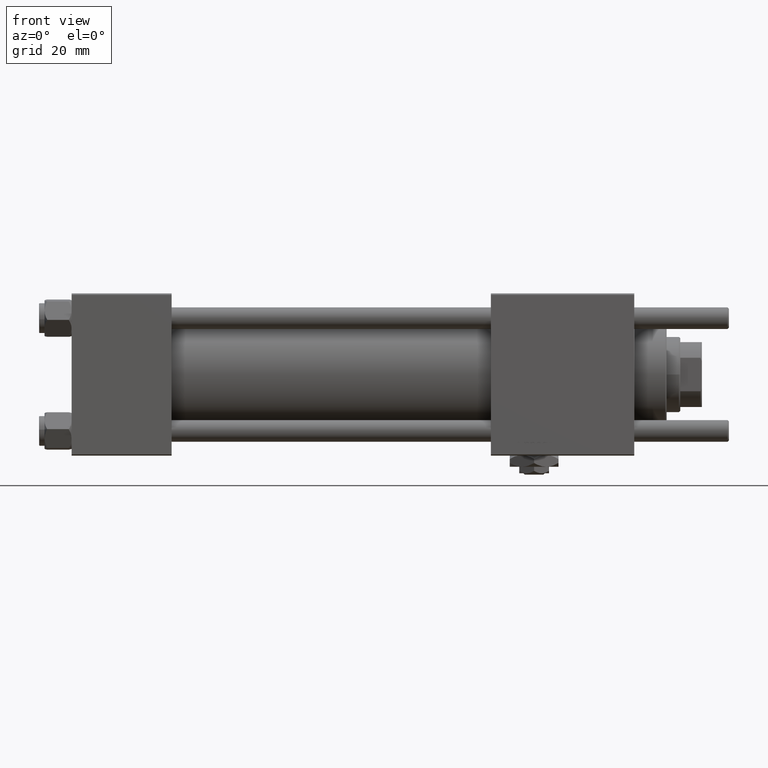
[diagram: clean part render]
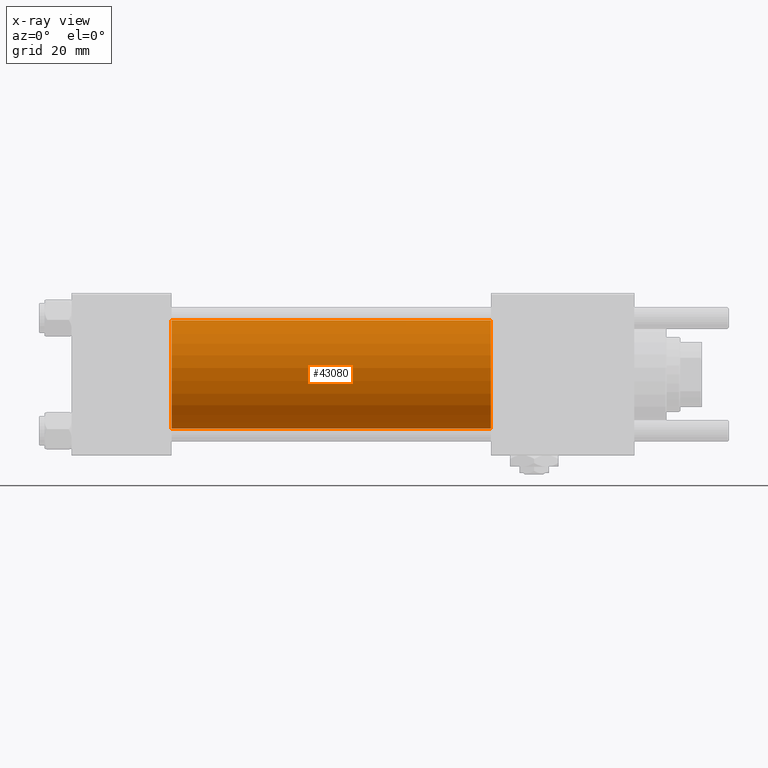
[diagram: x-ray — body ghosted, one internal face saturated and labeled with its STEP entity id]
A machine part, front view, then the same camera in x-ray: the body is ghosted and one INTERNAL B-rep face — a face not visible from any outside direction — is saturated and labeled: STEP entity #43080.
In plain terms, the highlighted cylindrical surface (partial cylindrical patch) has radius 20 mm, axis along (-1, -0, -0).
Its self-contained STEP definition (entity closure, byte-faithful):
#1126 = EDGE_LOOP ( 'NONE', ( #25140, #28459, #15072, #47596 ) ) ;
#1326 = CYLINDRICAL_SURFACE ( 'NONE', #4092, 20.00000000000000000 ) ;
#3419 = DIRECTION ( 'NONE',  ( 0.000000000000000000, 0.000000000000000000, -1.000000000000000000 ) ) ;
#4092 = AXIS2_PLACEMENT_3D ( 'NONE', #44231, #34768, #29747 ) ;
#4124 = DIRECTION ( 'NONE',  ( 0.000000000000000000, 0.000000000000000000, -1.000000000000000000 ) ) ;
#8356 = LINE ( 'NONE', #43066, #51229 ) ;
#12319 = DIRECTION ( 'NONE',  ( 1.000000000000000000, 0.000000000000000000, 0.000000000000000000 ) ) ;
#14650 = FACE_OUTER_BOUND ( 'NONE', #1126, .T. ) ;
#15072 = ORIENTED_EDGE ( 'NONE', *, *, #50157, .F. ) ;
#15453 = AXIS2_PLACEMENT_3D ( 'NONE', #40551, #31078, #4124 ) ;
#15545 = VERTEX_POINT ( 'NONE', #18889 ) ;
#15956 = CARTESIAN_POINT ( 'NONE',  ( 155.0000000000000000, -1.527916156705042519E-16, -20.00000000000000000 ) ) ;
#16958 = CARTESIAN_POINT ( 'NONE',  ( 37.00000000000000000, -2.602085213965210642E-15, 20.00000000000000000 ) ) ;
#18889 = CARTESIAN_POINT ( 'NONE',  ( 155.0000000000000000, -2.602085213965210642E-15, 20.00000000000000000 ) ) ;
#21089 = EDGE_CURVE ( 'NONE', #48987, #22145, #8356, .T. ) ;
#21772 = CARTESIAN_POINT ( 'NONE',  ( 37.00000000000000000, -2.602085213965210642E-15, 0.000000000000000000 ) ) ;
#22145 = VERTEX_POINT ( 'NONE', #39019 ) ;
#24717 = EDGE_CURVE ( 'NONE', #15545, #48987, #48532, .T. ) ;
#25140 = ORIENTED_EDGE ( 'NONE', *, *, #24717, .T. ) ;
#28459 = ORIENTED_EDGE ( 'NONE', *, *, #21089, .T. ) ;
#29747 = DIRECTION ( 'NONE',  ( 0.000000000000000000, 0.000000000000000000, 1.000000000000000000 ) ) ;
#30020 = DIRECTION ( 'NONE',  ( -1.000000000000000000, -0.000000000000000000, -0.000000000000000000 ) ) ;
#31078 = DIRECTION ( 'NONE',  ( 1.000000000000000000, 0.000000000000000000, 0.000000000000000000 ) ) ;
#34768 = DIRECTION ( 'NONE',  ( -1.000000000000000000, -0.000000000000000000, -0.000000000000000000 ) ) ;
#36019 = VERTEX_POINT ( 'NONE', #16958 ) ;
#39019 = CARTESIAN_POINT ( 'NONE',  ( 37.00000000000000000, -1.527916156705042519E-16, -20.00000000000000000 ) ) ;
#40551 = CARTESIAN_POINT ( 'NONE',  ( 155.0000000000000000, -2.602085213965210642E-15, 0.000000000000000000 ) ) ;
#42153 = AXIS2_PLACEMENT_3D ( 'NONE', #21772, #12319, #3419 ) ;
#43066 = CARTESIAN_POINT ( 'NONE',  ( 155.0000000000000000, -1.527916156705042519E-16, -20.00000000000000000 ) ) ;
#43080 = ADVANCED_FACE ( 'NONE', ( #14650 ), #1326, .F. ) ;
#44231 = CARTESIAN_POINT ( 'NONE',  ( 155.0000000000000000, -2.602085213965210642E-15, 0.000000000000000000 ) ) ;
#45909 = LINE ( 'NONE', #46794, #46771 ) ;
#45911 = CIRCLE ( 'NONE', #42153, 20.00000000000000000 ) ;
#46501 = DIRECTION ( 'NONE',  ( -1.000000000000000000, -0.000000000000000000, -0.000000000000000000 ) ) ;
#46771 = VECTOR ( 'NONE', #46501, 1000.000000000000000 ) ;
#46794 = CARTESIAN_POINT ( 'NONE',  ( 155.0000000000000000, -2.602085213965210642E-15, 20.00000000000000000 ) ) ;
#47596 = ORIENTED_EDGE ( 'NONE', *, *, #47821, .F. ) ;
#47821 = EDGE_CURVE ( 'NONE', #15545, #36019, #45909, .T. ) ;
#48532 = CIRCLE ( 'NONE', #15453, 20.00000000000000000 ) ;
#48987 = VERTEX_POINT ( 'NONE', #15956 ) ;
#50157 = EDGE_CURVE ( 'NONE', #36019, #22145, #45911, .T. ) ;
#51229 = VECTOR ( 'NONE', #30020, 1000.000000000000000 ) ;